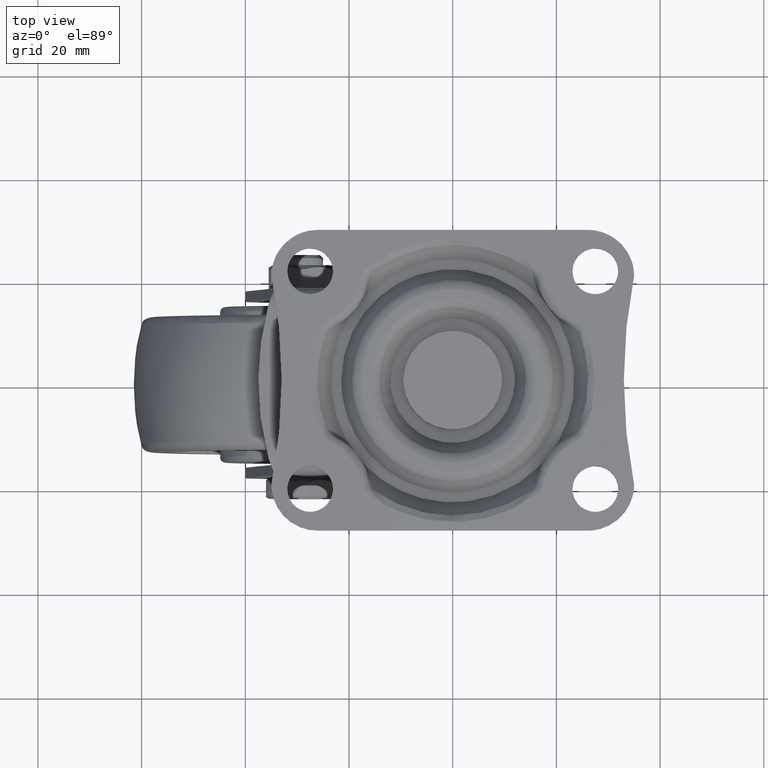
[diagram: clean part render]
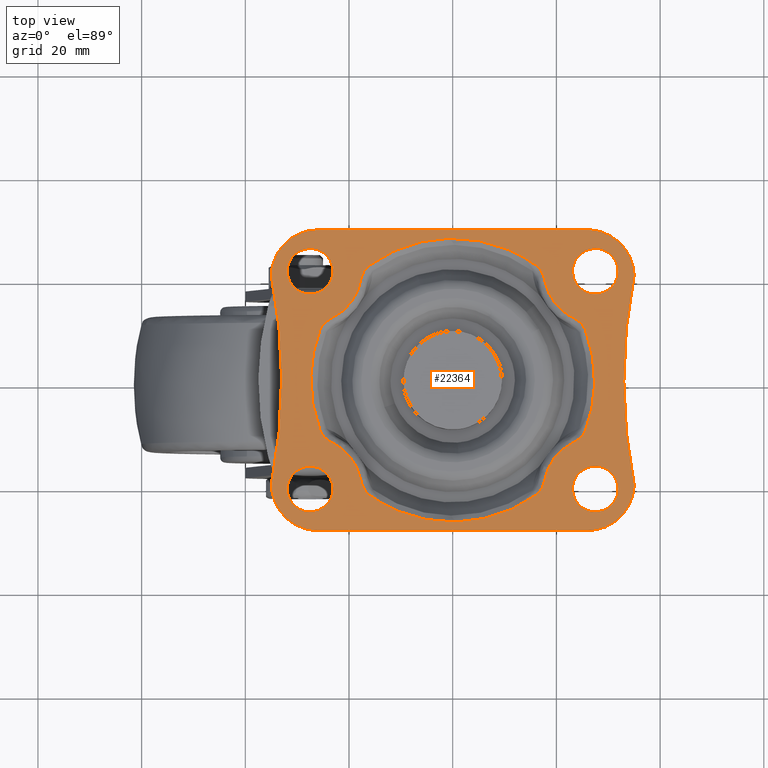
[diagram: same view with one face highlighted and labeled with its STEP entity id]
A machine part, top view. The second image highlights one B-rep face of the part: STEP entity #22364.
In plain terms, the highlighted face is a freeform B-spline surface patch.
Its self-contained STEP definition (entity closure, byte-faithful):
#7956=CARTESIAN_POINT('',(-26.953836778387188,16.634028559947119,-1.450307E-017));
#7957=VERTEX_POINT('',#7956);
#7963=CARTESIAN_POINT('',(-23.099999900000000,21.0,0.0));
#7964=VERTEX_POINT('',#7963);
#7965=CARTESIAN_POINT('',(-26.953836778387192,16.634028559947115,-1.450307E-017));
#7966=CARTESIAN_POINT('',(-23.099999900000004,17.116126071156575,0.0));
#7967=CARTESIAN_POINT('',(-23.099999900000000,21.0,0.0));
#7975=(BOUNDED_CURVE()B_SPLINE_CURVE(2,(#7965,#7966,#7967),.UNSPECIFIED.,.F.,.U.)B_SPLINE_CURVE_WITH_KNOTS((3,3),(0.271473928974468,0.500000000000000),.UNSPECIFIED.)CURVE()GEOMETRIC_REPRESENTATION_ITEM()RATIONAL_B_SPLINE_CURVE((0.954005430267408,0.732265053898162,1.0))REPRESENTATION_ITEM(''));
#7976=EDGE_CURVE('',#7957,#7964,#7975,.T.);
#7978=CARTESIAN_POINT('',(-27.538396757415128,25.399832561475488,-1.040834E-017));
#7979=VERTEX_POINT('',#7978);
#7980=CARTESIAN_POINT('',(-23.099999900000000,21.0,0.0));
#7981=CARTESIAN_POINT('',(-23.099999900000011,25.400000099999993,0.0));
#7982=CARTESIAN_POINT('',(-27.500000000000000,25.400000100000000,0.0));
#7983=CARTESIAN_POINT('',(-27.519198744397080,25.400000100000000,0.0));
#7984=CARTESIAN_POINT('',(-27.538396757415128,25.399832561475495,-1.040834E-017));
#7992=(BOUNDED_CURVE()B_SPLINE_CURVE(2,(#7980,#7981,#7982,#7983,#7984),.UNSPECIFIED.,.F.,.U.)B_SPLINE_CURVE_WITH_KNOTS((3,2,3),(0.500000000000000,0.750000000000000,0.751539894362982),.UNSPECIFIED.)CURVE()GEOMETRIC_REPRESENTATION_ITEM()RATIONAL_B_SPLINE_CURVE((1.0,0.707106781186548,1.0,0.998195901533574,0.996414028035618))REPRESENTATION_ITEM(''));
#7993=EDGE_CURVE('',#7964,#7979,#7992,.T.);
#8073=CARTESIAN_POINT('',(-31.900000099999989,21.0,0.0));
#8074=VERTEX_POINT('',#8073);
#8075=CARTESIAN_POINT('',(-27.538396757415136,25.399832561475488,-1.040834E-017));
#8076=CARTESIAN_POINT('',(-31.900000099999993,25.361769425055783,0.0));
#8077=CARTESIAN_POINT('',(-31.900000099999989,21.0,0.0));
#8085=(BOUNDED_CURVE()B_SPLINE_CURVE(2,(#8075,#8076,#8077),.UNSPECIFIED.,.F.,.U.)B_SPLINE_CURVE_WITH_KNOTS((3,3),(0.751539894362982,1.0),.UNSPECIFIED.)CURVE()GEOMETRIC_REPRESENTATION_ITEM()RATIONAL_B_SPLINE_CURVE((0.996414028035619,0.708910879652973,1.0))REPRESENTATION_ITEM(''));
#8086=EDGE_CURVE('',#7979,#8074,#8085,.T.);
#8088=CARTESIAN_POINT('',(-31.900000099999989,21.0,0.0));
#8089=CARTESIAN_POINT('',(-31.900000099999993,16.599999900000011,0.0));
#8090=CARTESIAN_POINT('',(-27.500000000000000,16.599999900000011,0.0));
#8091=CARTESIAN_POINT('',(-27.225858312572800,16.599999900000007,0.0));
#8092=CARTESIAN_POINT('',(-26.953836778387188,16.634028559947112,-1.450307E-017));
#8100=(BOUNDED_CURVE()B_SPLINE_CURVE(2,(#8088,#8089,#8090,#8091,#8092),.UNSPECIFIED.,.F.,.U.)B_SPLINE_CURVE_WITH_KNOTS((3,2,3),(0.0,0.250000000000000,0.271473928974468),.UNSPECIFIED.)CURVE()GEOMETRIC_REPRESENTATION_ITEM()RATIONAL_B_SPLINE_CURVE((1.0,0.707106781186548,1.0,0.974841727288386,0.954005430267408))REPRESENTATION_ITEM(''));
#8101=EDGE_CURVE('',#8074,#7957,#8100,.T.);
#8142=CARTESIAN_POINT('',(28.046153221612808,16.634028559947119,-1.450307E-017));
#8143=VERTEX_POINT('',#8142);
#8149=CARTESIAN_POINT('',(31.899990099999989,21.0,0.0));
#8150=VERTEX_POINT('',#8149);
#8151=CARTESIAN_POINT('',(28.046153221612812,16.634028559947115,-1.450307E-017));
#8152=CARTESIAN_POINT('',(31.899990099999997,17.116126071156575,0.0));
#8153=CARTESIAN_POINT('',(31.899990099999989,21.0,0.0));
#8161=(BOUNDED_CURVE()B_SPLINE_CURVE(2,(#8151,#8152,#8153),.UNSPECIFIED.,.F.,.U.)B_SPLINE_CURVE_WITH_KNOTS((3,3),(0.271473928974468,0.500000000000000),.UNSPECIFIED.)CURVE()GEOMETRIC_REPRESENTATION_ITEM()RATIONAL_B_SPLINE_CURVE((0.954005430267408,0.732265053898162,1.0))REPRESENTATION_ITEM(''));
#8162=EDGE_CURVE('',#8143,#8150,#8161,.T.);
#8164=CARTESIAN_POINT('',(27.461593242584868,25.399832561475488,-1.040834E-017));
#8165=VERTEX_POINT('',#8164);
#8166=CARTESIAN_POINT('',(31.899990099999989,21.0,0.0));
#8167=CARTESIAN_POINT('',(31.899990099999997,25.400000099999993,0.0));
#8168=CARTESIAN_POINT('',(27.499990000000000,25.400000100000000,0.0));
#8169=CARTESIAN_POINT('',(27.480791255602917,25.400000100000000,0.0));
#8170=CARTESIAN_POINT('',(27.461593242584861,25.399832561475485,-1.040834E-017));
#8178=(BOUNDED_CURVE()B_SPLINE_CURVE(2,(#8166,#8167,#8168,#8169,#8170),.UNSPECIFIED.,.F.,.U.)B_SPLINE_CURVE_WITH_KNOTS((3,2,3),(0.500000000000000,0.750000000000000,0.751539894362982),.UNSPECIFIED.)CURVE()GEOMETRIC_REPRESENTATION_ITEM()RATIONAL_B_SPLINE_CURVE((1.0,0.707106781186548,1.0,0.998195901533574,0.996414028035618))REPRESENTATION_ITEM(''));
#8179=EDGE_CURVE('',#8150,#8165,#8178,.T.);
#8259=CARTESIAN_POINT('',(23.099989900000001,21.0,0.0));
#8260=VERTEX_POINT('',#8259);
#8261=CARTESIAN_POINT('',(27.461593242584865,25.399832561475492,-1.040834E-017));
#8262=CARTESIAN_POINT('',(23.099989900000001,25.361769425055773,0.0));
#8263=CARTESIAN_POINT('',(23.099989900000001,21.0,0.0));
#8271=(BOUNDED_CURVE()B_SPLINE_CURVE(2,(#8261,#8262,#8263),.UNSPECIFIED.,.F.,.U.)B_SPLINE_CURVE_WITH_KNOTS((3,3),(0.751539894362981,1.0),.UNSPECIFIED.)CURVE()GEOMETRIC_REPRESENTATION_ITEM()RATIONAL_B_SPLINE_CURVE((0.996414028035619,0.708910879652973,1.0))REPRESENTATION_ITEM(''));
#8272=EDGE_CURVE('',#8165,#8260,#8271,.T.);
#8274=CARTESIAN_POINT('',(23.099989900000001,21.0,0.0));
#8275=CARTESIAN_POINT('',(23.099989900000004,16.599999900000011,0.0));
#8276=CARTESIAN_POINT('',(27.499990000000000,16.599999900000011,0.0));
#8277=CARTESIAN_POINT('',(27.774131687427197,16.599999900000007,0.0));
#8278=CARTESIAN_POINT('',(28.046153221612812,16.634028559947115,-1.450307E-017));
#8286=(BOUNDED_CURVE()B_SPLINE_CURVE(2,(#8274,#8275,#8276,#8277,#8278),.UNSPECIFIED.,.F.,.U.)B_SPLINE_CURVE_WITH_KNOTS((3,2,3),(0.0,0.250000000000000,0.271473928974468),.UNSPECIFIED.)CURVE()GEOMETRIC_REPRESENTATION_ITEM()RATIONAL_B_SPLINE_CURVE((1.0,0.707106781186548,1.0,0.974841727288386,0.954005430267408))REPRESENTATION_ITEM(''));
#8287=EDGE_CURVE('',#8260,#8143,#8286,.T.);
#8518=CARTESIAN_POINT('',(28.046153221612808,-25.365971440052888,-1.450307E-017));
#8519=VERTEX_POINT('',#8518);
#8525=CARTESIAN_POINT('',(31.899990099999989,-21.0,0.0));
#8526=VERTEX_POINT('',#8525);
#8527=CARTESIAN_POINT('',(28.046153221612812,-25.365971440052892,-1.450307E-017));
#8528=CARTESIAN_POINT('',(31.899990099999997,-24.883873928843421,0.0));
#8529=CARTESIAN_POINT('',(31.899990099999989,-21.0,0.0));
#8537=(BOUNDED_CURVE()B_SPLINE_CURVE(2,(#8527,#8528,#8529),.UNSPECIFIED.,.F.,.U.)B_SPLINE_CURVE_WITH_KNOTS((3,3),(0.271473928974468,0.500000000000000),.UNSPECIFIED.)CURVE()GEOMETRIC_REPRESENTATION_ITEM()RATIONAL_B_SPLINE_CURVE((0.954005430267408,0.732265053898162,1.0))REPRESENTATION_ITEM(''));
#8538=EDGE_CURVE('',#8519,#8526,#8537,.T.);
#8540=CARTESIAN_POINT('',(27.461593242584868,-16.600167438524512,-1.040834E-017));
#8541=VERTEX_POINT('',#8540);
#8542=CARTESIAN_POINT('',(31.899990099999989,-21.0,0.0));
#8543=CARTESIAN_POINT('',(31.899990099999997,-16.599999900000011,0.0));
#8544=CARTESIAN_POINT('',(27.499990000000000,-16.599999900000011,0.0));
#8545=CARTESIAN_POINT('',(27.480791255602917,-16.599999900000004,0.0));
#8546=CARTESIAN_POINT('',(27.461593242584861,-16.600167438524512,-1.040834E-017));
#8554=(BOUNDED_CURVE()B_SPLINE_CURVE(2,(#8542,#8543,#8544,#8545,#8546),.UNSPECIFIED.,.F.,.U.)B_SPLINE_CURVE_WITH_KNOTS((3,2,3),(0.500000000000000,0.750000000000000,0.751539894362982),.UNSPECIFIED.)CURVE()GEOMETRIC_REPRESENTATION_ITEM()RATIONAL_B_SPLINE_CURVE((1.0,0.707106781186548,1.0,0.998195901533574,0.996414028035618))REPRESENTATION_ITEM(''));
#8555=EDGE_CURVE('',#8526,#8541,#8554,.T.);
#8635=CARTESIAN_POINT('',(23.099989900000001,-21.0,0.0));
#8636=VERTEX_POINT('',#8635);
#8637=CARTESIAN_POINT('',(27.461593242584865,-16.600167438524508,-1.040834E-017));
#8638=CARTESIAN_POINT('',(23.099989900000001,-16.638230574944227,0.0));
#8639=CARTESIAN_POINT('',(23.099989900000001,-21.0,0.0));
#8647=(BOUNDED_CURVE()B_SPLINE_CURVE(2,(#8637,#8638,#8639),.UNSPECIFIED.,.F.,.U.)B_SPLINE_CURVE_WITH_KNOTS((3,3),(0.751539894362981,1.0),.UNSPECIFIED.)CURVE()GEOMETRIC_REPRESENTATION_ITEM()RATIONAL_B_SPLINE_CURVE((0.996414028035619,0.708910879652973,1.0))REPRESENTATION_ITEM(''));
#8648=EDGE_CURVE('',#8541,#8636,#8647,.T.);
#8650=CARTESIAN_POINT('',(23.099989900000001,-21.0,0.0));
#8651=CARTESIAN_POINT('',(23.099989900000004,-25.400000099999993,0.0));
#8652=CARTESIAN_POINT('',(27.499990000000000,-25.400000100000000,0.0));
#8653=CARTESIAN_POINT('',(27.774131687427197,-25.400000099999996,0.0));
#8654=CARTESIAN_POINT('',(28.046153221612812,-25.365971440052892,-1.450307E-017));
#8662=(BOUNDED_CURVE()B_SPLINE_CURVE(2,(#8650,#8651,#8652,#8653,#8654),.UNSPECIFIED.,.F.,.U.)B_SPLINE_CURVE_WITH_KNOTS((3,2,3),(0.0,0.250000000000000,0.271473928974468),.UNSPECIFIED.)CURVE()GEOMETRIC_REPRESENTATION_ITEM()RATIONAL_B_SPLINE_CURVE((1.0,0.707106781186548,1.0,0.974841727288386,0.954005430267408))REPRESENTATION_ITEM(''));
#8663=EDGE_CURVE('',#8636,#8519,#8662,.T.);
#8704=CARTESIAN_POINT('',(-26.953836778387188,-25.365971440052888,-1.450307E-017));
#8705=VERTEX_POINT('',#8704);
#8711=CARTESIAN_POINT('',(-23.099999900000000,-21.0,0.0));
#8712=VERTEX_POINT('',#8711);
#8713=CARTESIAN_POINT('',(-26.953836778387192,-25.365971440052892,-1.450307E-017));
#8714=CARTESIAN_POINT('',(-23.099999900000004,-24.883873928843435,0.0));
#8715=CARTESIAN_POINT('',(-23.099999900000000,-21.0,0.0));
#8723=(BOUNDED_CURVE()B_SPLINE_CURVE(2,(#8713,#8714,#8715),.UNSPECIFIED.,.F.,.U.)B_SPLINE_CURVE_WITH_KNOTS((3,3),(0.271473928974468,0.500000000000000),.UNSPECIFIED.)CURVE()GEOMETRIC_REPRESENTATION_ITEM()RATIONAL_B_SPLINE_CURVE((0.954005430267408,0.732265053898162,1.0))REPRESENTATION_ITEM(''));
#8724=EDGE_CURVE('',#8705,#8712,#8723,.T.);
#8726=CARTESIAN_POINT('',(-27.538396757415128,-16.600167438524512,-1.040834E-017));
#8727=VERTEX_POINT('',#8726);
#8728=CARTESIAN_POINT('',(-23.099999900000000,-21.0,0.0));
#8729=CARTESIAN_POINT('',(-23.099999900000011,-16.599999900000011,0.0));
#8730=CARTESIAN_POINT('',(-27.500000000000000,-16.599999900000011,0.0));
#8731=CARTESIAN_POINT('',(-27.519198744397080,-16.599999900000004,0.0));
#8732=CARTESIAN_POINT('',(-27.538396757415128,-16.600167438524512,-1.040834E-017));
#8740=(BOUNDED_CURVE()B_SPLINE_CURVE(2,(#8728,#8729,#8730,#8731,#8732),.UNSPECIFIED.,.F.,.U.)B_SPLINE_CURVE_WITH_KNOTS((3,2,3),(0.500000000000000,0.750000000000000,0.751539894362982),.UNSPECIFIED.)CURVE()GEOMETRIC_REPRESENTATION_ITEM()RATIONAL_B_SPLINE_CURVE((1.0,0.707106781186548,1.0,0.998195901533574,0.996414028035618))REPRESENTATION_ITEM(''));
#8741=EDGE_CURVE('',#8712,#8727,#8740,.T.);
#8821=CARTESIAN_POINT('',(-31.900000099999989,-21.0,0.0));
#8822=VERTEX_POINT('',#8821);
#8823=CARTESIAN_POINT('',(-27.538396757415136,-16.600167438524512,-1.040834E-017));
#8824=CARTESIAN_POINT('',(-31.900000099999993,-16.638230574944224,0.0));
#8825=CARTESIAN_POINT('',(-31.900000099999989,-21.0,0.0));
#8833=(BOUNDED_CURVE()B_SPLINE_CURVE(2,(#8823,#8824,#8825),.UNSPECIFIED.,.F.,.U.)B_SPLINE_CURVE_WITH_KNOTS((3,3),(0.751539894362982,1.0),.UNSPECIFIED.)CURVE()GEOMETRIC_REPRESENTATION_ITEM()RATIONAL_B_SPLINE_CURVE((0.996414028035619,0.708910879652973,1.0))REPRESENTATION_ITEM(''));
#8834=EDGE_CURVE('',#8727,#8822,#8833,.T.);
#8836=CARTESIAN_POINT('',(-31.900000099999989,-21.0,0.0));
#8837=CARTESIAN_POINT('',(-31.900000099999993,-25.400000099999993,0.0));
#8838=CARTESIAN_POINT('',(-27.500000000000000,-25.400000100000000,0.0));
#8839=CARTESIAN_POINT('',(-27.225858312572800,-25.400000099999993,0.0));
#8840=CARTESIAN_POINT('',(-26.953836778387188,-25.365971440052885,-1.450307E-017));
#8848=(BOUNDED_CURVE()B_SPLINE_CURVE(2,(#8836,#8837,#8838,#8839,#8840),.UNSPECIFIED.,.F.,.U.)B_SPLINE_CURVE_WITH_KNOTS((3,2,3),(0.0,0.250000000000000,0.271473928974468),.UNSPECIFIED.)CURVE()GEOMETRIC_REPRESENTATION_ITEM()RATIONAL_B_SPLINE_CURVE((1.0,0.707106781186548,1.0,0.974841727288386,0.954005430267408))REPRESENTATION_ITEM(''));
#8849=EDGE_CURVE('',#8822,#8705,#8848,.T.);
#18695=CARTESIAN_POINT('',(-34.996665220768847,20.244611880344650,0.0));
#18696=VERTEX_POINT('',#18695);
#18717=CARTESIAN_POINT('',(-34.996665220768747,-20.244611880344198,0.0));
#18718=VERTEX_POINT('',#18717);
#18724=CARTESIAN_POINT('',(-34.996665220768847,-20.244611880344181,0.0));
#18725=CARTESIAN_POINT('',(-30.957251078704829,2.146061E-013,0.0));
#18726=CARTESIAN_POINT('',(-34.996665220768939,20.244611880344610,0.0));
#18734=(BOUNDED_CURVE()B_SPLINE_CURVE(2,(#18724,#18725,#18726),.UNSPECIFIED.,.F.,.U.)CURVE()GEOMETRIC_REPRESENTATION_ITEM()QUASI_UNIFORM_CURVE()RATIONAL_B_SPLINE_CURVE((1.0,0.980669150357168,1.0))REPRESENTATION_ITEM(''));
#18735=EDGE_CURVE('',#18718,#18696,#18734,.T.);
#18756=CARTESIAN_POINT('',(-25.999990000000000,-29.0,0.0));
#18757=VERTEX_POINT('',#18756);
#18763=CARTESIAN_POINT('',(-34.996665220768762,-20.244611880344198,0.0));
#18764=CARTESIAN_POINT('',(-34.758613729685891,-29.000000000000004,0.0));
#18765=CARTESIAN_POINT('',(-25.999990000000000,-29.0,0.0));
#18773=(BOUNDED_CURVE()B_SPLINE_CURVE(2,(#18763,#18764,#18765),.UNSPECIFIED.,.F.,.U.)CURVE()GEOMETRIC_REPRESENTATION_ITEM()QUASI_UNIFORM_CURVE()RATIONAL_B_SPLINE_CURVE((1.0,0.716651623111265,1.0))REPRESENTATION_ITEM(''));
#18774=EDGE_CURVE('',#18718,#18757,#18773,.T.);
#18805=CARTESIAN_POINT('',(25.999993141592750,-28.999999999999449,0.0));
#18806=VERTEX_POINT('',#18805);
#18812=CARTESIAN_POINT('',(25.999993141592750,-28.999999999999449,0.0));
#18813=CARTESIAN_POINT('',(-25.999990000000000,-29.0,0.0));
#18814=QUASI_UNIFORM_CURVE('',1,(#18812,#18813),.UNSPECIFIED.,.F.,.U.);
#18815=EDGE_CURVE('',#18806,#18757,#18814,.T.);
#18837=CARTESIAN_POINT('',(34.996665220768847,-20.244611880344600,0.0));
#18838=VERTEX_POINT('',#18837);
#18844=CARTESIAN_POINT('',(25.999993141592750,-28.999999999999449,0.0));
#18845=CARTESIAN_POINT('',(34.758613812811845,-28.999996942663991,0.0));
#18846=CARTESIAN_POINT('',(34.996665220768847,-20.244611880344600,0.0));
#18854=(BOUNDED_CURVE()B_SPLINE_CURVE(2,(#18844,#18845,#18846),.UNSPECIFIED.,.F.,.U.)CURVE()GEOMETRIC_REPRESENTATION_ITEM()QUASI_UNIFORM_CURVE()RATIONAL_B_SPLINE_CURVE((1.0,0.716651744836003,1.0))REPRESENTATION_ITEM(''));
#18855=EDGE_CURVE('',#18806,#18838,#18854,.T.);
#18903=CARTESIAN_POINT('',(34.996665220768747,20.244611880344198,0.0));
#18904=VERTEX_POINT('',#18903);
#18910=CARTESIAN_POINT('',(34.996665220768747,20.244611880344198,0.0));
#18911=CARTESIAN_POINT('',(30.957251078704825,-1.627309E-013,0.0));
#18912=CARTESIAN_POINT('',(34.996665220768847,-20.244611880344600,0.0));
#18920=(BOUNDED_CURVE()B_SPLINE_CURVE(2,(#18910,#18911,#18912),.UNSPECIFIED.,.F.,.U.)CURVE()GEOMETRIC_REPRESENTATION_ITEM()QUASI_UNIFORM_CURVE()RATIONAL_B_SPLINE_CURVE((1.0,0.980669150357169,1.0))REPRESENTATION_ITEM(''));
#18921=EDGE_CURVE('',#18904,#18838,#18920,.T.);
#18943=CARTESIAN_POINT('',(25.999992827433399,28.999999999999549,0.0));
#18944=VERTEX_POINT('',#18943);
#18950=CARTESIAN_POINT('',(34.996665220768762,20.244611880344198,0.0));
#18951=CARTESIAN_POINT('',(34.758613804499589,28.999997248397619,0.0));
#18952=CARTESIAN_POINT('',(25.999992827433399,28.999999999999549,0.0));
#18960=(BOUNDED_CURVE()B_SPLINE_CURVE(2,(#18950,#18951,#18952),.UNSPECIFIED.,.F.,.U.)CURVE()GEOMETRIC_REPRESENTATION_ITEM()QUASI_UNIFORM_CURVE()RATIONAL_B_SPLINE_CURVE((1.0,0.716651732663513,1.0))REPRESENTATION_ITEM(''));
#18961=EDGE_CURVE('',#18904,#18944,#18960,.T.);
#18992=CARTESIAN_POINT('',(-25.999990000000000,29.0,0.0));
#18993=VERTEX_POINT('',#18992);
#18999=CARTESIAN_POINT('',(-25.999990000000000,29.0,0.0));
#19000=CARTESIAN_POINT('',(25.999992827433399,28.999999999999549,0.0));
#19001=QUASI_UNIFORM_CURVE('',1,(#18999,#19000),.UNSPECIFIED.,.F.,.U.);
#19002=EDGE_CURVE('',#18993,#18944,#19001,.T.);
#19023=CARTESIAN_POINT('',(-25.999990000000000,29.0,0.0));
#19024=CARTESIAN_POINT('',(-34.758613729685443,29.000000000000004,0.0));
#19025=CARTESIAN_POINT('',(-34.996665220768740,20.244611880344650,0.0));
#19033=(BOUNDED_CURVE()B_SPLINE_CURVE(2,(#19023,#19024,#19025),.UNSPECIFIED.,.F.,.U.)CURVE()GEOMETRIC_REPRESENTATION_ITEM()QUASI_UNIFORM_CURVE()RATIONAL_B_SPLINE_CURVE((1.0,0.716651623111283,1.0))REPRESENTATION_ITEM(''));
#19034=EDGE_CURVE('',#18993,#18696,#19033,.T.);
#19294=CARTESIAN_POINT('',(-25.591212590839000,-9.715728735231270,0.0));
#19295=VERTEX_POINT('',#19294);
#19296=CARTESIAN_POINT('',(-23.170474890031201,-12.096898613283740,0.0));
#19297=VERTEX_POINT('',#19296);
#19298=CARTESIAN_POINT('',(-25.591212590839000,-9.715728735231270,0.0));
#19299=CARTESIAN_POINT('',(-25.565182702811811,-9.784291415023242,0.0));
#19300=CARTESIAN_POINT('',(-25.536709832404579,-9.851804138086944,0.0));
#19301=CARTESIAN_POINT('',(-25.475167638890522,-9.984854098644947,0.0));
#19302=CARTESIAN_POINT('',(-25.442148249014270,-10.050258242234991,0.0));
#19303=CARTESIAN_POINT('',(-25.337513298018621,-10.242072836035240,0.0));
#19304=CARTESIAN_POINT('',(-25.260105726351600,-10.364643127830741,0.0));
#19305=CARTESIAN_POINT('',(-25.091959404021090,-10.600538227247069,0.0));
#19306=CARTESIAN_POINT('',(-25.001208519785379,-10.713854619951990,0.0));
#19307=CARTESIAN_POINT('',(-24.855984655612829,-10.877519853928630,0.0));
#19308=CARTESIAN_POINT('',(-24.805960628355969,-10.931105387296890,0.0));
#19309=CARTESIAN_POINT('',(-24.704089588477810,-11.035150971774550,0.0));
#19310=CARTESIAN_POINT('',(-24.652128740227010,-11.085748899533289,0.0));
#19311=CARTESIAN_POINT('',(-24.387568897670651,-11.332129838167329,0.0));
#19312=CARTESIAN_POINT('',(-24.160888674477789,-11.508344635965431,0.0));
#19313=CARTESIAN_POINT('',(-23.683304163680141,-11.827110859010650,0.0));
#19314=CARTESIAN_POINT('',(-23.432327257452599,-11.969561368585250,0.0));
#19315=CARTESIAN_POINT('',(-23.170474890031201,-12.096898613283740,0.0));
#19316=B_SPLINE_CURVE_WITH_KNOTS('',3,(#19298,#19299,#19300,#19301,#19302,#19303,#19304,#19305,#19306,#19307,#19308,#19309,#19310,#19311,#19312,#19313,#19314,#19315),.UNSPECIFIED.,.F.,.U.,(4,2,2,2,2,2,2,2,4),(0.0,0.062500000000000,0.124999999999999,0.249999999999999,0.375000000000000,0.437499999999999,0.499999999999999,0.749999999999999,1.0),.UNSPECIFIED.);
#19317=EDGE_CURVE('',#19295,#19297,#19316,.T.);
#19368=CARTESIAN_POINT('',(-25.591212590838950,9.715728735231290,0.0));
#19369=VERTEX_POINT('',#19368);
#19383=CARTESIAN_POINT('',(-25.591212590838989,-9.715728735231279,0.0));
#19384=CARTESIAN_POINT('',(-29.279798449032743,8.340550E-015,0.0));
#19385=CARTESIAN_POINT('',(-25.591212590838978,9.715728735231286,0.0));
#19393=(BOUNDED_CURVE()B_SPLINE_CURVE(2,(#19383,#19384,#19385),.UNSPECIFIED.,.F.,.U.)CURVE()GEOMETRIC_REPRESENTATION_ITEM()QUASI_UNIFORM_CURVE()RATIONAL_B_SPLINE_CURVE((1.0,0.934891886720673,1.0))REPRESENTATION_ITEM(''));
#19394=EDGE_CURVE('',#19295,#19369,#19393,.T.);
#19430=CARTESIAN_POINT('',(-17.771067118333800,-19.167551647649450,0.0));
#19431=VERTEX_POINT('',#19430);
#19461=CARTESIAN_POINT('',(-17.771067118333800,-19.167551647649450,0.0));
#19462=CARTESIAN_POINT('',(-18.692690706822237,-14.274418357936954,0.0));
#19463=CARTESIAN_POINT('',(-23.170474890031180,-12.096898613283710,0.0));
#19471=(BOUNDED_CURVE()B_SPLINE_CURVE(2,(#19461,#19462,#19463),.UNSPECIFIED.,.F.,.U.)CURVE()GEOMETRIC_REPRESENTATION_ITEM()QUASI_UNIFORM_CURVE()RATIONAL_B_SPLINE_CURVE((1.0,0.893371763774231,1.0))REPRESENTATION_ITEM(''));
#19472=EDGE_CURVE('',#19431,#19297,#19471,.T.);
#19547=CARTESIAN_POINT('',(-23.170474890031201,12.096898613283759,0.0));
#19548=VERTEX_POINT('',#19547);
#19562=CARTESIAN_POINT('',(-23.170474890031201,12.096898613283759,0.0));
#19563=CARTESIAN_POINT('',(-23.301308137076120,12.033275185480861,0.0));
#19564=CARTESIAN_POINT('',(-23.429871953215830,11.965630754009050,0.0));
#19565=CARTESIAN_POINT('',(-23.682141751739419,11.821734725581610,0.0));
#19566=CARTESIAN_POINT('',(-23.806060675906721,11.745342293971930,0.0));
#19567=CARTESIAN_POINT('',(-24.168370768676620,11.503008936132421,0.0));
#19568=CARTESIAN_POINT('',(-24.395879697373989,11.325207057278840,0.0));
#19569=CARTESIAN_POINT('',(-24.712081095606099,11.029485566275371,0.0));
#19570=CARTESIAN_POINT('',(-24.813276104857010,10.926042340020739,0.0));
#19571=CARTESIAN_POINT('',(-24.957844800936421,10.762513218145781,0.0));
#19572=CARTESIAN_POINT('',(-25.004802250918772,10.706611438570301,0.0));
#19573=CARTESIAN_POINT('',(-25.095126704138721,10.593076699941060,0.0));
#19574=CARTESIAN_POINT('',(-25.138624955480012,10.535300026765521,0.0));
#19575=CARTESIAN_POINT('',(-25.263909492382481,10.358809688479440,0.0));
#19576=CARTESIAN_POINT('',(-25.340512221157500,10.236951875750851,0.0));
#19577=CARTESIAN_POINT('',(-25.478182368915490,9.983813124572469,0.0));
#19578=CARTESIAN_POINT('',(-25.539270303388879,9.852544630035833,0.0));
#19579=CARTESIAN_POINT('',(-25.591212590838950,9.715728735231298,0.0));
#19580=B_SPLINE_CURVE_WITH_KNOTS('',3,(#19562,#19563,#19564,#19565,#19566,#19567,#19568,#19569,#19570,#19571,#19572,#19573,#19574,#19575,#19576,#19577,#19578,#19579),.UNSPECIFIED.,.F.,.U.,(4,2,2,2,2,2,2,2,4),(0.0,0.124999999999998,0.249999999999996,0.499999999999993,0.624999999999993,0.687499999999994,0.749999999999994,0.874999999999997,1.0),.UNSPECIFIED.);
#19581=EDGE_CURVE('',#19548,#19369,#19580,.T.);
#19672=CARTESIAN_POINT('',(-16.111335525958850,-22.129853463050551,0.0));
#19673=VERTEX_POINT('',#19672);
#19707=CARTESIAN_POINT('',(-17.771067118333800,-19.167551647649450,0.0));
#19708=CARTESIAN_POINT('',(-17.744138842717639,-19.310520689997940,0.0));
#19709=CARTESIAN_POINT('',(-17.712733893616001,-19.452359165389751,0.0));
#19710=CARTESIAN_POINT('',(-17.640341445214140,-19.733616079364690,0.0));
#19711=CARTESIAN_POINT('',(-17.599274151277669,-19.873277028605180,0.0));
#19712=CARTESIAN_POINT('',(-17.460893051625209,-20.286610708461641,0.0));
#19713=CARTESIAN_POINT('',(-17.349271435167459,-20.552908353025469,0.0));
#19714=CARTESIAN_POINT('',(-17.147245265765630,-20.935818200590241,0.0));
#19715=CARTESIAN_POINT('',(-17.074098304264091,-21.060679936035299,0.0));
#19716=CARTESIAN_POINT('',(-16.954406632243590,-21.243206058100679,0.0));
#19717=CARTESIAN_POINT('',(-16.912842030612559,-21.303226012780801,0.0));
#19718=CARTESIAN_POINT('',(-16.827097332981179,-21.420258019314051,0.0));
#19719=CARTESIAN_POINT('',(-16.782813153584740,-21.477434529247461,0.0));
#19720=CARTESIAN_POINT('',(-16.645539910350731,-21.644769855425810,0.0));
#19721=CARTESIAN_POINT('',(-16.548152761922921,-21.750755929510461,0.0));
#19722=CARTESIAN_POINT('',(-16.340197244253002,-21.950222216392451,0.0));
#19723=CARTESIAN_POINT('',(-16.229646281758050,-22.043718944076261,0.0));
#19724=CARTESIAN_POINT('',(-16.111335525958850,-22.129853463050551,0.0));
#19725=B_SPLINE_CURVE_WITH_KNOTS('',3,(#19707,#19708,#19709,#19710,#19711,#19712,#19713,#19714,#19715,#19716,#19717,#19718,#19719,#19720,#19721,#19722,#19723,#19724),.UNSPECIFIED.,.F.,.U.,(4,2,2,2,2,2,2,2,4),(0.0,0.124999999999998,0.249999999999996,0.499999999999993,0.624999999999992,0.687499999999993,0.749999999999993,0.874999999999997,1.0),.UNSPECIFIED.);
#19726=EDGE_CURVE('',#19431,#19673,#19725,.T.);
#19899=CARTESIAN_POINT('',(-17.771067118333800,19.167551647649400,0.0));
#19900=VERTEX_POINT('',#19899);
#19914=CARTESIAN_POINT('',(-23.170474890031180,12.096898613283710,0.0));
#19915=CARTESIAN_POINT('',(-18.692690706822269,14.274418357936947,0.0));
#19916=CARTESIAN_POINT('',(-17.771067118333800,19.167551647649400,0.0));
#19924=(BOUNDED_CURVE()B_SPLINE_CURVE(2,(#19914,#19915,#19916),.UNSPECIFIED.,.F.,.U.)CURVE()GEOMETRIC_REPRESENTATION_ITEM()QUASI_UNIFORM_CURVE()RATIONAL_B_SPLINE_CURVE((1.0,0.893371763774232,1.0))REPRESENTATION_ITEM(''));
#19925=EDGE_CURVE('',#19548,#19900,#19924,.T.);
#19961=CARTESIAN_POINT('',(16.111323922075801,-22.129861911093400,0.0));
#19962=VERTEX_POINT('',#19961);
#19992=CARTESIAN_POINT('',(16.111323922075819,-22.129861911093400,0.0));
#19993=CARTESIAN_POINT('',(-0.000008877180536,-33.859483297255878,0.0));
#19994=CARTESIAN_POINT('',(-16.111335525958850,-22.129853463050569,0.0));
#20002=(BOUNDED_CURVE()B_SPLINE_CURVE(2,(#19992,#19993,#19994),.UNSPECIFIED.,.F.,.U.)CURVE()GEOMETRIC_REPRESENTATION_ITEM()QUASI_UNIFORM_CURVE()RATIONAL_B_SPLINE_CURVE((1.0,0.808442520356912,1.0))REPRESENTATION_ITEM(''));
#20003=EDGE_CURVE('',#19962,#19673,#20002,.T.);
#20227=CARTESIAN_POINT('',(-16.111335525958850,22.129853463050551,0.0));
#20228=VERTEX_POINT('',#20227);
#20242=CARTESIAN_POINT('',(-16.111335525958850,22.129853463050551,0.0));
#20243=CARTESIAN_POINT('',(-16.170624707799870,22.086688789443699,0.0));
#20244=CARTESIAN_POINT('',(-16.228257719069600,22.041443810311339,0.0));
#20245=CARTESIAN_POINT('',(-16.340407669321571,21.947039773080480,0.0));
#20246=CARTESIAN_POINT('',(-16.394809359184190,21.897963931298200,0.0));
#20247=CARTESIAN_POINT('',(-16.552303355874830,21.746514426937789,0.0));
#20248=CARTESIAN_POINT('',(-16.650165915954840,21.639564308112199,0.0));
#20249=CARTESIAN_POINT('',(-16.833461561568669,21.415237782839490,0.0));
#20250=CARTESIAN_POINT('',(-16.918883334230092,21.297851886750561,0.0));
#20251=CARTESIAN_POINT('',(-17.038533801603329,21.114657877036279,0.0));
#20252=CARTESIAN_POINT('',(-17.077056429665632,21.052289457010389,0.0));
#20253=CARTESIAN_POINT('',(-17.150606485836111,20.926616939519580,0.0));
#20254=CARTESIAN_POINT('',(-17.185736950776828,20.863166719051339,0.0));
#20255=CARTESIAN_POINT('',(-17.353761585361450,20.543067985238871,0.0));
#20256=CARTESIAN_POINT('',(-17.464070335493201,20.277987698921379,0.0));
#20257=CARTESIAN_POINT('',(-17.645833935901020,19.733321871578479,0.0));
#20258=CARTESIAN_POINT('',(-17.717172310401331,19.453692846866709,0.0));
#20259=CARTESIAN_POINT('',(-17.771067118333800,19.167551647649400,0.0));
#20260=B_SPLINE_CURVE_WITH_KNOTS('',3,(#20242,#20243,#20244,#20245,#20246,#20247,#20248,#20249,#20250,#20251,#20252,#20253,#20254,#20255,#20256,#20257,#20258,#20259),.UNSPECIFIED.,.F.,.U.,(4,2,2,2,2,2,2,2,4),(0.0,0.062500000000000,0.125000000000001,0.250000000000002,0.375000000000003,0.437500000000003,0.500000000000003,0.750000000000001,1.0),.UNSPECIFIED.);
#20261=EDGE_CURVE('',#20228,#19900,#20260,.T.);
#20352=CARTESIAN_POINT('',(17.771055763994251,-19.167558838195500,0.0));
#20353=VERTEX_POINT('',#20352);
#20387=CARTESIAN_POINT('',(16.111323922075801,-22.129861911093400,0.0));
#20388=CARTESIAN_POINT('',(16.170613150160559,-22.086697251386038,0.0));
#20389=CARTESIAN_POINT('',(16.228246204613210,-22.041452283199039,0.0));
#20390=CARTESIAN_POINT('',(16.340396235693110,-21.947048262578221,0.0));
#20391=CARTESIAN_POINT('',(16.394797982309161,-21.897972409191969,0.0));
#20392=CARTESIAN_POINT('',(16.552292114994039,-21.746522880168619,0.0));
#20393=CARTESIAN_POINT('',(16.650154745030282,-21.639572739587990,0.0));
#20394=CARTESIAN_POINT('',(16.833450499145300,-21.415246165463561,0.0));
#20395=CARTESIAN_POINT('',(16.918872310259651,-21.297860242219851,0.0));
#20396=CARTESIAN_POINT('',(17.038522815573270,-21.114666189551489,0.0));
#20397=CARTESIAN_POINT('',(17.077045461900418,-21.052297740867591,0.0));
#20398=CARTESIAN_POINT('',(17.150595555942999,-20.926625147246099,0.0));
#20399=CARTESIAN_POINT('',(17.185726035253872,-20.863174888550070,0.0));
#20400=CARTESIAN_POINT('',(17.353750721159638,-20.543075963086910,0.0));
#20401=CARTESIAN_POINT('',(17.464059448483429,-20.277995522215360,0.0));
#20402=CARTESIAN_POINT('',(17.645822898112460,-19.733329382937701,0.0));
#20403=CARTESIAN_POINT('',(17.717161144271131,-19.453700200816019,0.0));
#20404=CARTESIAN_POINT('',(17.771055763994251,-19.167558838195500,0.0));
#20405=B_SPLINE_CURVE_WITH_KNOTS('',3,(#20387,#20388,#20389,#20390,#20391,#20392,#20393,#20394,#20395,#20396,#20397,#20398,#20399,#20400,#20401,#20402,#20403,#20404),.UNSPECIFIED.,.F.,.U.,(4,2,2,2,2,2,2,2,4),(0.0,0.062499999999999,0.124999999999998,0.249999999999997,0.374999999999997,0.437499999999997,0.499999999999997,0.749999999999998,1.0),.UNSPECIFIED.);
#20406=EDGE_CURVE('',#19962,#20353,#20405,.T.);
#20583=CARTESIAN_POINT('',(16.111323922075901,22.129861911093300,0.0));
#20584=VERTEX_POINT('',#20583);
#20598=CARTESIAN_POINT('',(-16.111335525958850,22.129853463050541,0.0));
#20599=CARTESIAN_POINT('',(-0.000008877180459,33.859483297255920,0.0));
#20600=CARTESIAN_POINT('',(16.111323922075911,22.129861911093300,0.0));
#20608=(BOUNDED_CURVE()B_SPLINE_CURVE(2,(#20598,#20599,#20600),.UNSPECIFIED.,.F.,.U.)CURVE()GEOMETRIC_REPRESENTATION_ITEM()QUASI_UNIFORM_CURVE()RATIONAL_B_SPLINE_CURVE((1.0,0.808442520356911,1.0))REPRESENTATION_ITEM(''));
#20609=EDGE_CURVE('',#20228,#20584,#20608,.T.);
#20645=CARTESIAN_POINT('',(23.170474593460099,-12.096893894570639,0.0));
#20646=VERTEX_POINT('',#20645);
#20676=CARTESIAN_POINT('',(23.170474593460099,-12.096893894570631,0.0));
#20677=CARTESIAN_POINT('',(18.692677835663901,-14.274413719748329,0.0));
#20678=CARTESIAN_POINT('',(17.771055763994259,-19.167558838195500,0.0));
#20686=(BOUNDED_CURVE()B_SPLINE_CURVE(2,(#20676,#20677,#20678),.UNSPECIFIED.,.F.,.U.)CURVE()GEOMETRIC_REPRESENTATION_ITEM()QUASI_UNIFORM_CURVE()RATIONAL_B_SPLINE_CURVE((1.0,0.893371352876438,1.0))REPRESENTATION_ITEM(''));
#20687=EDGE_CURVE('',#20646,#20353,#20686,.T.);
#20915=CARTESIAN_POINT('',(17.771055763994301,19.167558838195450,0.0));
#20916=VERTEX_POINT('',#20915);
#20930=CARTESIAN_POINT('',(17.771055763994301,19.167558838195450,0.0));
#20931=CARTESIAN_POINT('',(17.744130387980530,19.310513066673789,0.0));
#20932=CARTESIAN_POINT('',(17.712731045205249,19.452327241324429,0.0));
#20933=CARTESIAN_POINT('',(17.640359783095679,19.733516311764561,0.0));
#20934=CARTESIAN_POINT('',(17.599334489842601,19.873058538176871,0.0));
#20935=CARTESIAN_POINT('',(17.460898283605129,20.286596378560908,0.0));
#20936=CARTESIAN_POINT('',(17.349252672206529,20.552920835662832,0.0));
#20937=CARTESIAN_POINT('',(17.147295601975529,20.935715530341529,0.0));
#20938=CARTESIAN_POINT('',(17.074189564026518,21.060512933638119,0.0));
#20939=CARTESIAN_POINT('',(16.954604764689648,21.242905128087109,0.0));
#20940=CARTESIAN_POINT('',(16.913021243748862,21.302966338437720,0.0));
#20941=CARTESIAN_POINT('',(16.827224480088589,21.420086092616209,0.0));
#20942=CARTESIAN_POINT('',(16.782915800657239,21.477300006293639,0.0));
#20943=CARTESIAN_POINT('',(16.645575942337889,21.644729274543401,0.0));
#20944=CARTESIAN_POINT('',(16.548153367377189,21.750753557362120,0.0));
#20945=CARTESIAN_POINT('',(16.340160645410439,21.950254309749329,0.0));
#20946=CARTESIAN_POINT('',(16.229607659383721,22.043747157456941,0.0));
#20947=CARTESIAN_POINT('',(16.111323922075901,22.129861911093300,0.0));
#20948=B_SPLINE_CURVE_WITH_KNOTS('',3,(#20930,#20931,#20932,#20933,#20934,#20935,#20936,#20937,#20938,#20939,#20940,#20941,#20942,#20943,#20944,#20945,#20946,#20947),.UNSPECIFIED.,.F.,.U.,(4,2,2,2,2,2,2,2,4),(0.0,0.124999999999999,0.249999999999999,0.499999999999997,0.624999999999999,0.687499999999999,0.749999999999999,0.875000000000000,1.0),.UNSPECIFIED.);
#20949=EDGE_CURVE('',#20916,#20584,#20948,.T.);
#21040=CARTESIAN_POINT('',(25.591214277004749,-9.715724293872340,0.0));
#21041=VERTEX_POINT('',#21040);
#21075=CARTESIAN_POINT('',(23.170474593460099,-12.096893894570639,0.0));
#21076=CARTESIAN_POINT('',(23.301253107874881,-12.033297259160690,0.0));
#21077=CARTESIAN_POINT('',(23.430158319713549,-11.965465405279421,0.0));
#21078=CARTESIAN_POINT('',(23.682023547071850,-11.821795399263390,0.0));
#21079=CARTESIAN_POINT('',(23.805013838790860,-11.745967941279449,0.0));
#21080=CARTESIAN_POINT('',(24.164558156782530,-11.505694613254610,0.0));
#21081=CARTESIAN_POINT('',(24.391832917755259,-11.328657650389280,0.0));
#21082=CARTESIAN_POINT('',(24.709717150324028,-11.031855493230131,0.0));
#21083=CARTESIAN_POINT('',(24.812073407072500,-10.927277518145459,0.0));
#21084=CARTESIAN_POINT('',(25.004047516359840,-10.710369075641919,0.0));
#21085=CARTESIAN_POINT('',(25.094140199827208,-10.597660338657940,0.0));
#21086=CARTESIAN_POINT('',(25.261270482721059,-10.362819796685629,0.0));
#21087=CARTESIAN_POINT('',(25.338320741540901,-10.240697129158530,0.0));
#21088=CARTESIAN_POINT('',(25.442606136294248,-10.049364089840720,0.0));
#21089=CARTESIAN_POINT('',(25.475551765209360,-9.984058094639369,0.0));
#21090=CARTESIAN_POINT('',(25.536877103542530,-9.851406303254295,0.0));
#21091=CARTESIAN_POINT('',(25.565258696333029,-9.784091283977158,0.0));
#21092=CARTESIAN_POINT('',(25.591214277004749,-9.715724293872340,0.0));
#21093=B_SPLINE_CURVE_WITH_KNOTS('',3,(#21075,#21076,#21077,#21078,#21079,#21080,#21081,#21082,#21083,#21084,#21085,#21086,#21087,#21088,#21089,#21090,#21091,#21092),.UNSPECIFIED.,.F.,.U.,(4,2,2,2,2,2,2,2,4),(0.0,0.124999999999999,0.249999999999998,0.499999999999999,0.625000000000000,0.750000000000001,0.875000000000002,0.937500000000001,1.0),.UNSPECIFIED.);
#21094=EDGE_CURVE('',#20646,#21041,#21093,.T.);
#21267=CARTESIAN_POINT('',(23.170474593460050,12.096893894570661,0.0));
#21268=VERTEX_POINT('',#21267);
#21282=CARTESIAN_POINT('',(17.771055763994269,19.167558838195450,0.0));
#21283=CARTESIAN_POINT('',(18.692677835663929,14.274413719748352,0.0));
#21284=CARTESIAN_POINT('',(23.170474593460050,12.096893894570661,0.0));
#21292=(BOUNDED_CURVE()B_SPLINE_CURVE(2,(#21282,#21283,#21284),.UNSPECIFIED.,.F.,.U.)CURVE()GEOMETRIC_REPRESENTATION_ITEM()QUASI_UNIFORM_CURVE()RATIONAL_B_SPLINE_CURVE((1.0,0.893371352876441,1.0))REPRESENTATION_ITEM(''));
#21293=EDGE_CURVE('',#20916,#21268,#21292,.T.);
#21329=CARTESIAN_POINT('',(25.591214277004749,9.715724293872350,0.0));
#21330=VERTEX_POINT('',#21329);
#21360=CARTESIAN_POINT('',(25.591214277004770,9.715724293872357,0.0));
#21361=CARTESIAN_POINT('',(29.279796519831802,1.007527E-014,0.0));
#21362=CARTESIAN_POINT('',(25.591214277004781,-9.715724293872345,0.0));
#21370=(BOUNDED_CURVE()B_SPLINE_CURVE(2,(#21360,#21361,#21362),.UNSPECIFIED.,.F.,.U.)CURVE()GEOMETRIC_REPRESENTATION_ITEM()QUASI_UNIFORM_CURVE()RATIONAL_B_SPLINE_CURVE((1.0,0.934891948319267,1.0))REPRESENTATION_ITEM(''));
#21371=EDGE_CURVE('',#21330,#21041,#21370,.T.);
#21612=CARTESIAN_POINT('',(25.591214277004749,9.715724293872350,0.0));
#21613=CARTESIAN_POINT('',(25.565184390511021,9.784287005484867,0.0));
#21614=CARTESIAN_POINT('',(25.536711518349691,9.851799757337160,0.0));
#21615=CARTESIAN_POINT('',(25.475169315467959,9.984849769907864,0.0));
#21616=CARTESIAN_POINT('',(25.442149906397031,10.050253959720679,0.0));
#21617=CARTESIAN_POINT('',(25.337514900128269,10.242068654503671,0.0));
#21618=CARTESIAN_POINT('',(25.260107282896069,10.364638992360170,0.0));
#21619=CARTESIAN_POINT('',(25.091960859254431,10.600534150325570,0.0));
#21620=CARTESIAN_POINT('',(25.001209919195460,10.713850555440830,0.0));
#21621=CARTESIAN_POINT('',(24.855985966160372,10.877515786384119,0.0));
#21622=CARTESIAN_POINT('',(24.805961897268169,10.931101327370021,0.0));
#21623=CARTESIAN_POINT('',(24.704090757418459,11.035146932692591,0.0));
#21624=CARTESIAN_POINT('',(24.652129858322770,11.085744866152099,0.0));
#21625=CARTESIAN_POINT('',(24.387569757960939,11.332125811951380,0.0));
#21626=CARTESIAN_POINT('',(24.160889317845651,11.508340548921870,0.0));
#21627=CARTESIAN_POINT('',(23.683304354594931,11.827106541106540,0.0));
#21628=CARTESIAN_POINT('',(23.432327212746390,11.969556880272730,0.0));
#21629=CARTESIAN_POINT('',(23.170474593460050,12.096893894570661,0.0));
#21630=B_SPLINE_CURVE_WITH_KNOTS('',3,(#21612,#21613,#21614,#21615,#21616,#21617,#21618,#21619,#21620,#21621,#21622,#21623,#21624,#21625,#21626,#21627,#21628,#21629),.UNSPECIFIED.,.F.,.U.,(4,2,2,2,2,2,2,2,4),(0.0,0.062500000000001,0.125000000000001,0.250000000000002,0.375000000000004,0.437500000000004,0.500000000000004,0.750000000000002,1.0),.UNSPECIFIED.);
#21631=EDGE_CURVE('',#21330,#21268,#21630,.T.);
#22307=CARTESIAN_POINT('',(-38.492833254757620,31.897099887584751,0.0));
#22308=CARTESIAN_POINT('',(38.492833880546762,31.897099887584751,0.0));
#22309=CARTESIAN_POINT('',(-38.492833254757620,-31.897101443265981,0.0));
#22310=CARTESIAN_POINT('',(38.492833880546762,-31.897101443265981,0.0));
#22311=B_SPLINE_SURFACE_WITH_KNOTS('',1,1,((#22307,#22309),(#22308,#22310)),.UNSPECIFIED.,.F.,.F.,.U.,(2,2),(2,2),(0.0,76.985667135304368),(0.0,63.794201330850733),.UNSPECIFIED.);
#22312=ORIENTED_EDGE('',*,*,#19034,.T.);
#22313=ORIENTED_EDGE('',*,*,#18735,.F.);
#22314=ORIENTED_EDGE('',*,*,#18774,.T.);
#22315=ORIENTED_EDGE('',*,*,#18815,.F.);
#22316=ORIENTED_EDGE('',*,*,#18855,.T.);
#22317=ORIENTED_EDGE('',*,*,#18921,.F.);
#22318=ORIENTED_EDGE('',*,*,#18961,.T.);
#22319=ORIENTED_EDGE('',*,*,#19002,.F.);
#22320=EDGE_LOOP('',(#22312,#22313,#22314,#22315,#22316,#22317,#22318,#22319));
#22321=FACE_OUTER_BOUND('',#22320,.T.);
#22322=ORIENTED_EDGE('',*,*,#21094,.F.);
#22323=ORIENTED_EDGE('',*,*,#20687,.T.);
#22324=ORIENTED_EDGE('',*,*,#20406,.F.);
#22325=ORIENTED_EDGE('',*,*,#20003,.T.);
#22326=ORIENTED_EDGE('',*,*,#19726,.F.);
#22327=ORIENTED_EDGE('',*,*,#19472,.T.);
#22328=ORIENTED_EDGE('',*,*,#19317,.F.);
#22329=ORIENTED_EDGE('',*,*,#19394,.T.);
#22330=ORIENTED_EDGE('',*,*,#19581,.F.);
#22331=ORIENTED_EDGE('',*,*,#19925,.T.);
#22332=ORIENTED_EDGE('',*,*,#20261,.F.);
#22333=ORIENTED_EDGE('',*,*,#20609,.T.);
#22334=ORIENTED_EDGE('',*,*,#20949,.F.);
#22335=ORIENTED_EDGE('',*,*,#21293,.T.);
#22336=ORIENTED_EDGE('',*,*,#21631,.F.);
#22337=ORIENTED_EDGE('',*,*,#21371,.T.);
#22338=EDGE_LOOP('',(#22322,#22323,#22324,#22325,#22326,#22327,#22328,#22329,#22330,#22331,#22332,#22333,#22334,#22335,#22336,#22337));
#22339=FACE_BOUND('',#22338,.T.);
#22340=ORIENTED_EDGE('',*,*,#8741,.F.);
#22341=ORIENTED_EDGE('',*,*,#8724,.F.);
#22342=ORIENTED_EDGE('',*,*,#8849,.F.);
#22343=ORIENTED_EDGE('',*,*,#8834,.F.);
#22344=EDGE_LOOP('',(#22340,#22341,#22342,#22343));
#22345=FACE_BOUND('',#22344,.T.);
#22346=ORIENTED_EDGE('',*,*,#8555,.F.);
#22347=ORIENTED_EDGE('',*,*,#8538,.F.);
#22348=ORIENTED_EDGE('',*,*,#8663,.F.);
#22349=ORIENTED_EDGE('',*,*,#8648,.F.);
#22350=EDGE_LOOP('',(#22346,#22347,#22348,#22349));
#22351=FACE_BOUND('',#22350,.T.);
#22352=ORIENTED_EDGE('',*,*,#8179,.F.);
#22353=ORIENTED_EDGE('',*,*,#8162,.F.);
#22354=ORIENTED_EDGE('',*,*,#8287,.F.);
#22355=ORIENTED_EDGE('',*,*,#8272,.F.);
#22356=EDGE_LOOP('',(#22352,#22353,#22354,#22355));
#22357=FACE_BOUND('',#22356,.T.);
#22358=ORIENTED_EDGE('',*,*,#7993,.F.);
#22359=ORIENTED_EDGE('',*,*,#7976,.F.);
#22360=ORIENTED_EDGE('',*,*,#8101,.F.);
#22361=ORIENTED_EDGE('',*,*,#8086,.F.);
#22362=EDGE_LOOP('',(#22358,#22359,#22360,#22361));
#22363=FACE_BOUND('',#22362,.T.);
#22364=ADVANCED_FACE('',(#22321,#22339,#22345,#22351,#22357,#22363),#22311,.F.);